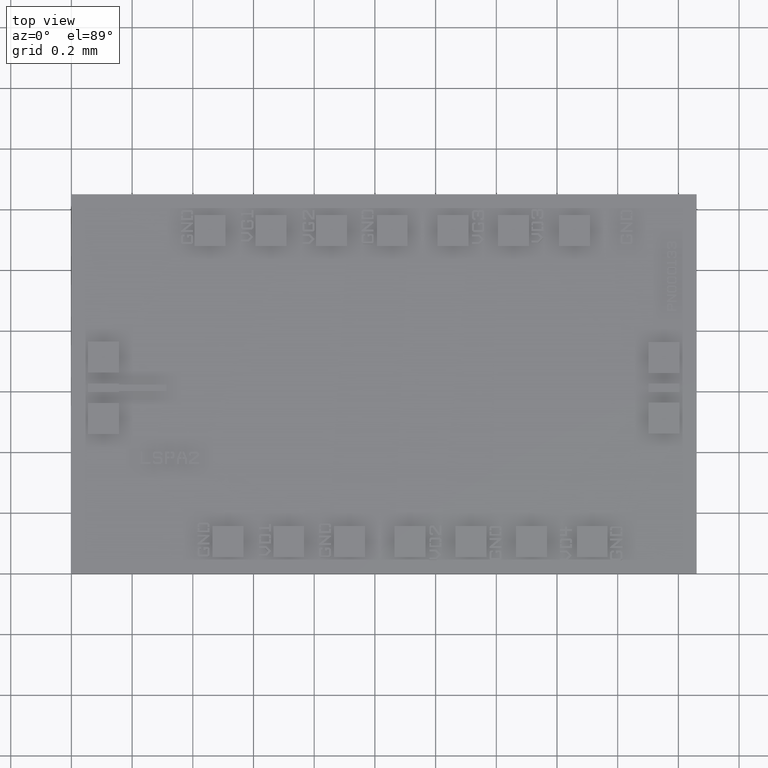
[diagram: clean part render]
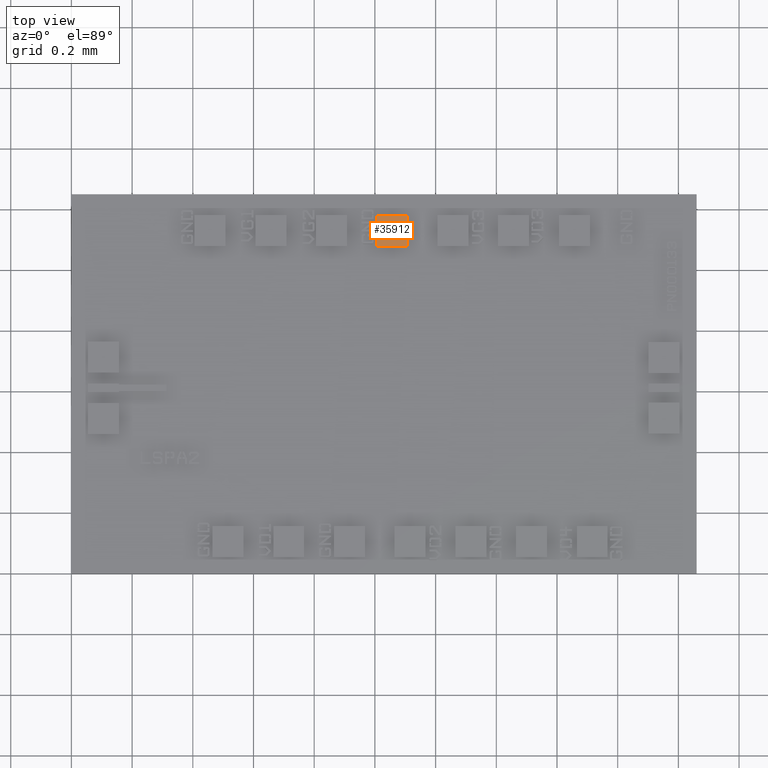
[diagram: same view with one face highlighted and labeled with its STEP entity id]
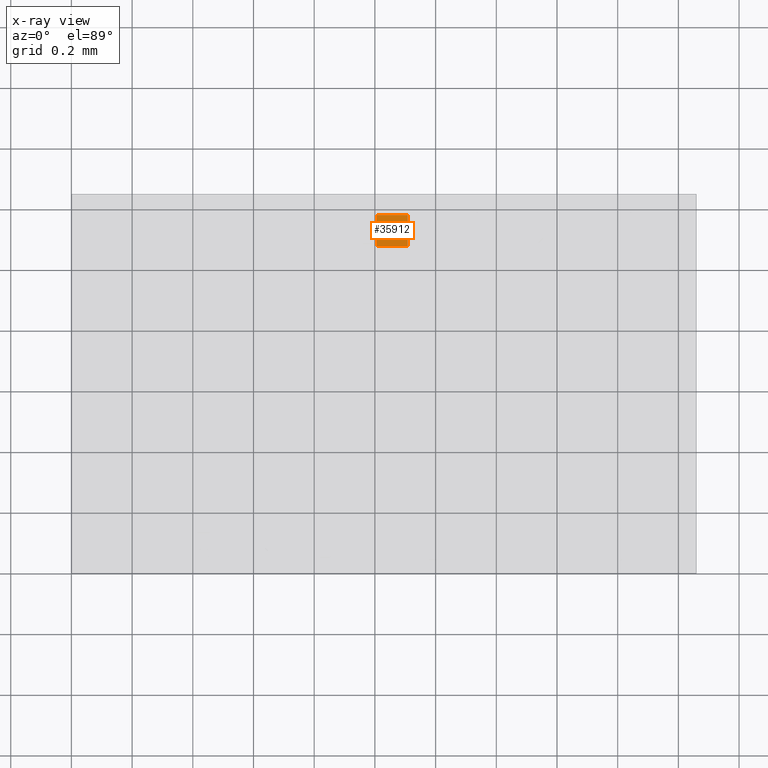
[diagram: x-ray of the same camera — body ghosted, the highlighted face saturated]
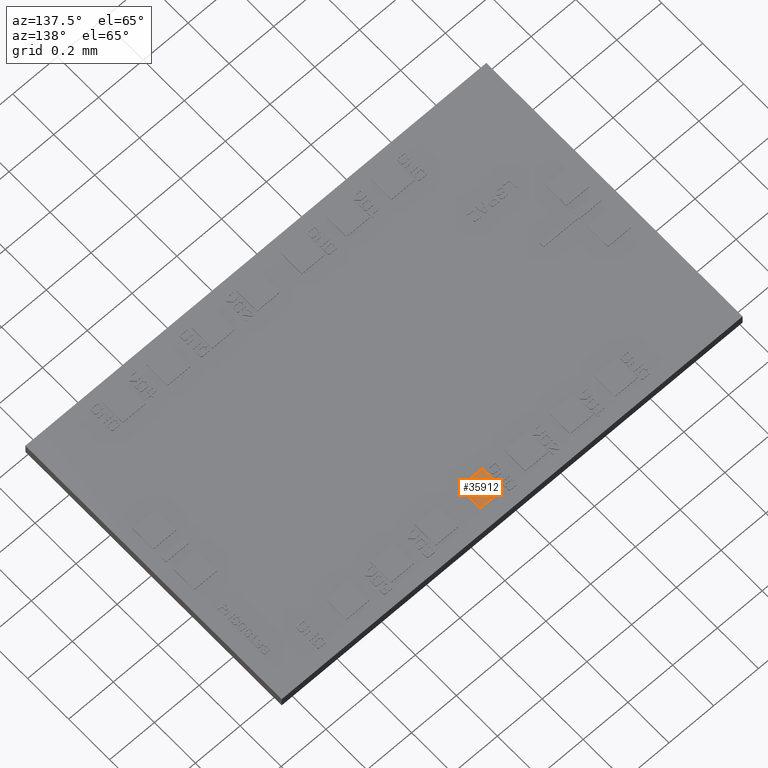
[diagram: same view with one face highlighted and labeled with its STEP entity id]
A machine part, top view. The second image highlights one B-rep face of the part: STEP entity #35912.
The next image is the same camera in x-ray: the body ghosted, the highlighted face saturated — about 0% of this face is hidden behind the body in this view.
A second angle (auxiliary view) of the same face is appended — the face is thin or edge-on in the first view.
In plain terms, the highlighted planar face has unit normal (0, 0, 1).
Its self-contained STEP definition (entity closure, byte-faithful):
#1429=CARTESIAN_POINT('',(0.043622047244094,0.046496062992126,0.001968503937008));
#1430=VERTEX_POINT('',#1429);
#1437=CARTESIAN_POINT('',(0.043622047244094,0.042480314960630,0.001968503937008));
#1438=VERTEX_POINT('',#1437);
#1439=CARTESIAN_POINT('',(0.043622047244094,0.042480314960630,0.001968503937008));
#1440=DIRECTION('',(0.0,1.0,0.0));
#1441=VECTOR('',#1440,0.004015748031496);
#1442=LINE('',#1439,#1441);
#1443=EDGE_CURVE('',#1438,#1430,#1442,.T.);
#1467=CARTESIAN_POINT('',(0.039606299212598,0.046496062992126,0.001968503937008));
#1468=VERTEX_POINT('',#1467);
#1475=CARTESIAN_POINT('',(0.043622047244094,0.046496062992126,0.001968503937008));
#1476=DIRECTION('',(-1.0,0.0,0.0));
#1477=VECTOR('',#1476,0.004015748031496);
#1478=LINE('',#1475,#1477);
#1479=EDGE_CURVE('',#1430,#1468,#1478,.T.);
#1498=CARTESIAN_POINT('',(0.039606299212598,0.042480314960630,0.001968503937008));
#1499=VERTEX_POINT('',#1498);
#1506=CARTESIAN_POINT('',(0.039606299212598,0.046496062992126,0.001968503937008));
#1507=DIRECTION('',(0.0,-1.0,0.0));
#1508=VECTOR('',#1507,0.004015748031496);
#1509=LINE('',#1506,#1508);
#1510=EDGE_CURVE('',#1468,#1499,#1509,.T.);
#1528=CARTESIAN_POINT('',(0.039606299212598,0.042480314960630,0.001968503937008));
#1529=DIRECTION('',(1.0,0.0,0.0));
#1530=VECTOR('',#1529,0.004015748031496);
#1531=LINE('',#1528,#1530);
#1532=EDGE_CURVE('',#1499,#1438,#1531,.T.);
#35901=CARTESIAN_POINT('',(0.040551181102362,0.024606299212598,0.001968503937008));
#35902=DIRECTION('',(0.0,0.0,1.0));
#35903=DIRECTION('',(1.0,0.0,0.0));
#35904=AXIS2_PLACEMENT_3D('',#35901,#35902,#35903);
#35905=PLANE('',#35904);
#35906=ORIENTED_EDGE('',*,*,#1443,.T.);
#35907=ORIENTED_EDGE('',*,*,#1479,.T.);
#35908=ORIENTED_EDGE('',*,*,#1510,.T.);
#35909=ORIENTED_EDGE('',*,*,#1532,.T.);
#35910=EDGE_LOOP('',(#35906,#35907,#35908,#35909));
#35911=FACE_OUTER_BOUND('',#35910,.T.);
#35912=ADVANCED_FACE('',(#35911),#35905,.T.);